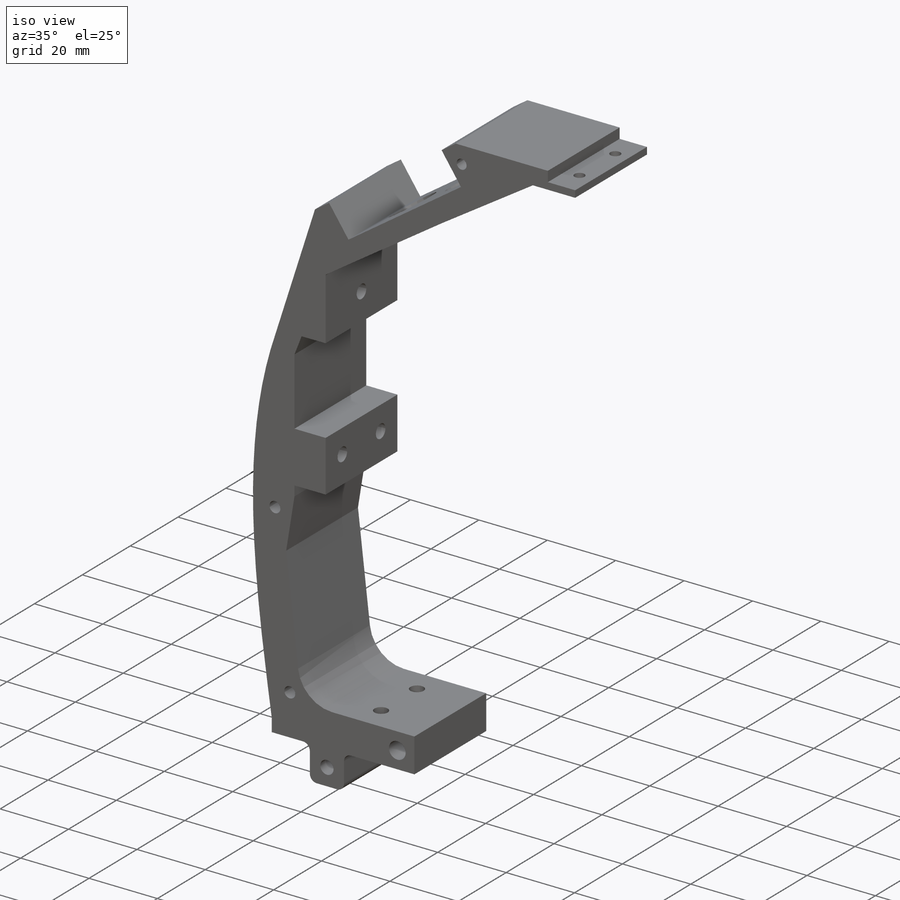
[diagram: iso view]
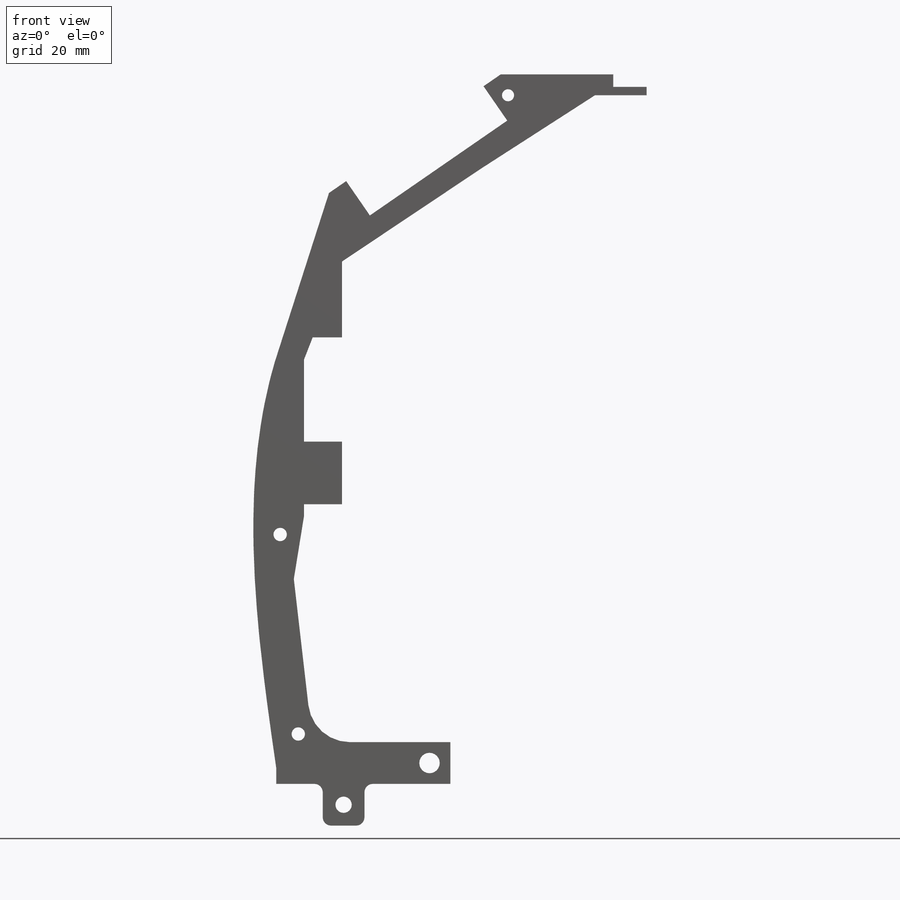
[diagram: front view]
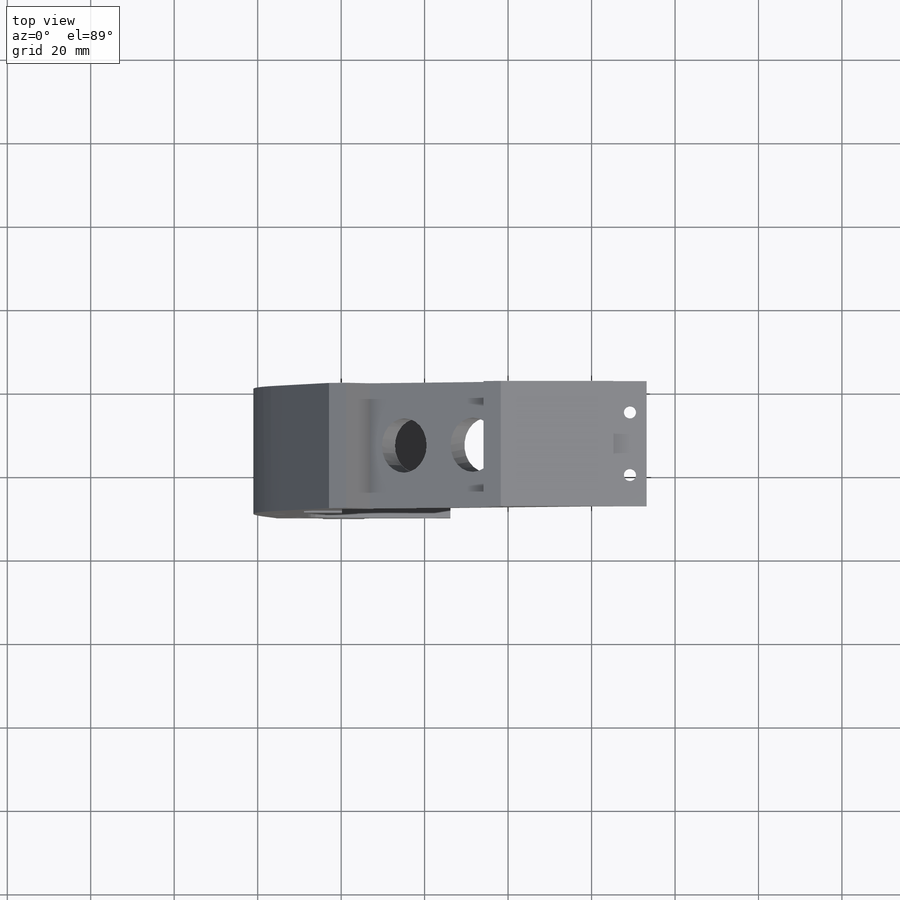
[diagram: top view]
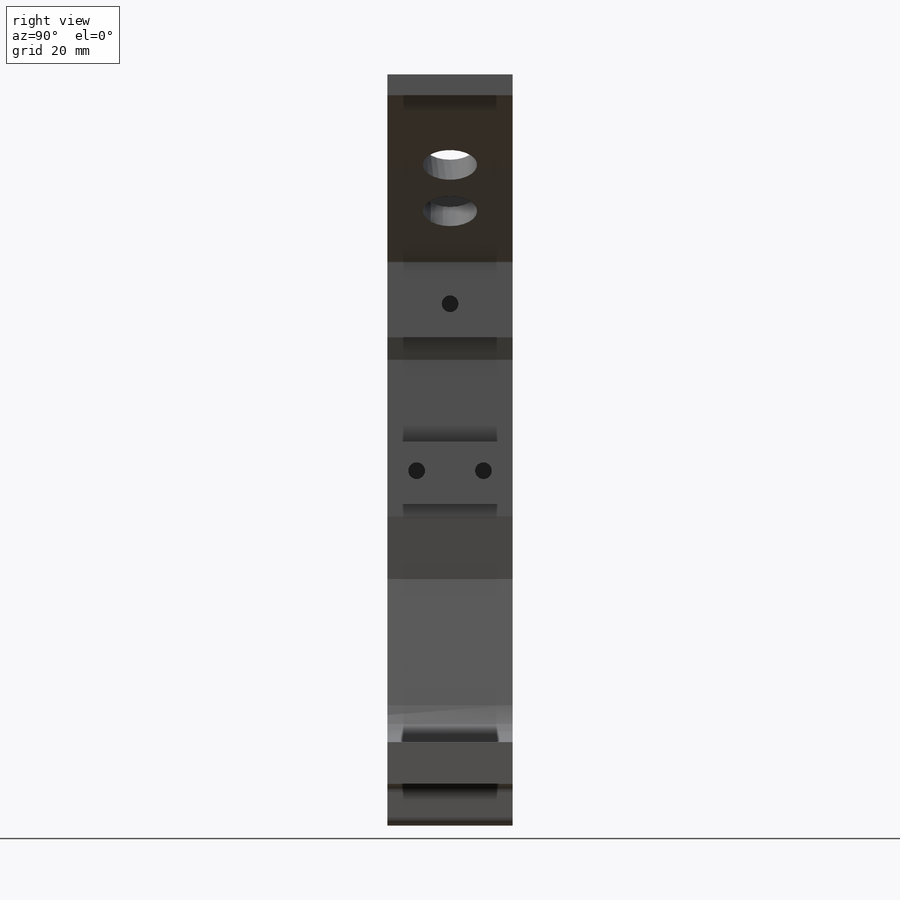
[diagram: right view]
SOLIDWORKS PART (.sldprt)
format: sldprt  version: not decoded by parser v0  size: 787,456 bytes
history: native  units: mm
features: sketch x20, cut_extrude x7, extrude x5, hole x4, move_body x2, fillet x2, material x1 + 1 further entry (+20 scaffold rows collapsed; 4 parser-record rows omitted)
feature tree (66):
  scaffold x20  (default folders/planes/origin — collapsed)
  material  "ABS"
  "front plate"
  parser-record x4  (decoder bookkeeping rows leaked as tree rows — omitted from the tree; the rows remain in map.json)
  move_body  "Body-Move/Copy2"
  move_body  "<front plate>-<Split1[1]>"
  sketch  "Sketch1"  dims[c1.D2=5.0mm c1.D1=0.0mm c2.D2=0.0mm c2.D1=0.0mm]
  extrude  "Extrude1"  Depth=30mm
  sketch  "Sketch6"  dims[D1=25.0mm D2=18.0mm D3=15.0mm D4=45.0mm]
  extrude  "Extrude4"  [1 undecoded]
  hole  "Ø4.0 (4) Diameter Hole1"  Diameter=4mm Depth=10mm
  sketch  "3DSketch3"  dims[c1.D1=16.0mm c1.D2=~6.100521mm c1.D4=7.0mm c1.D3=42.5mm c2.D4=45.0mm c2.D2=40.0mm c2.D3=~57.008771mm]
  sketch  "Sketch7"  dims[hole-wizard template sketch: 47 standard entries collapsed; hole parameters kept: c15.Hole Depth=10.0mm c15.D3=~14.816244mm c15.Drill Angle=180.0deg]
  hole  "Ø2.9 (2.9) Diameter Hole1"  Diameter=2.9mm Depth=30.009075mm
  sketch  "3DSketch4"  dims[D1=5.0mm D2=9.0mm]
  sketch  "Sketch8"  dims[hole-wizard template sketch: 60 standard entries collapsed; hole parameters kept: c18.Thru Hole Depth=~30.009075mm]
  sketch  "Sketch10"  dims[D1=66.8mm D2=8.0mm]
  cut_extrude  "Extrude6"  Depth=3mm
  hole  "Ø2.9 (2.9) Diameter Hole2"  Diameter=2.9mm Depth=10mm
  sketch  "3DSketch5"  dims[D1=15.0mm D2=7.5mm D3=7.5mm]
  sketch  "Sketch11"  dims[hole-wizard template sketch: 50 standard entries collapsed; hole parameters above]
  sketch  "Sketch13"  dims[c1.D1=3.2mm c1.D2=12.0mm c1.D3=60.0mm c1.D4=~11.96659mm c2.D2=12.0mm]
  cut_extrude  "Extrude7"  [1 undecoded]
  sketch  "Sketch14"  dims[D1=10.0mm D2=33.0mm]
  extrude  "Extrude8"  [1 undecoded]
  fillet  "Fillet1"  Radius=10mm
  sketch  "Sketch15"  dims[D1=4.9mm D2=5.0mm]
  cut_extrude  "Extrude9"  [1 undecoded]
  sketch  "Sketch18"  dims[D1=40.0mm D2=5.0mm]
  cut_extrude  "Extrude12"  Depth=10mm
  sketch  "Sketch19"  dims[D1=13.0mm D2=20.0mm D3=10.0mm]
  cut_extrude  "Extrude13"  [1 undecoded]
  hole  "Ø3.9 (3.9) Diameter Hole1"  Diameter=3.9mm Depth=54.5mm
  sketch  "3DSketch7"  dims[D1=7.5mm D2=15.0mm D3=15.0mm]
  sketch  "Sketch20"  dims[hole-wizard template sketch: 47 standard entries collapsed; hole parameters kept: c15.Hole Depth=54.5mm c15.D3=~14.816244mm c15.Drill Angle=180.0deg]
  sketch  "Sketch22"  dims[D1=10.0mm D2=10.0mm]
  extrude  "Extrude16"  [1 undecoded]
  sketch  "Sketch23"  dims[D1=3.9mm D2=5.0mm D3=5.0mm]
  cut_extrude  "Extrude17"  [1 undecoded]
  fillet  "Fillet3"  Radius=2mm
  sketch  "Sketch24"
  extrude  "Extrude18"  Depth=15mm
  sketch  "Sketch25"
  cut_extrude  "Extrude19"  Depth=24mm
decode coverage: 29 of 40 modeling features carry decoded parameters; 1 rows unclassified (native names shown)
note: ~ marks probable driven/reference dimensions
note: 7 parameter values undecoded
summary: no parameter record found for 7 features; Diameter pulled from absorbed wizard sketch
note: suppression state not decoded; provenance and decode notes live in map.json
